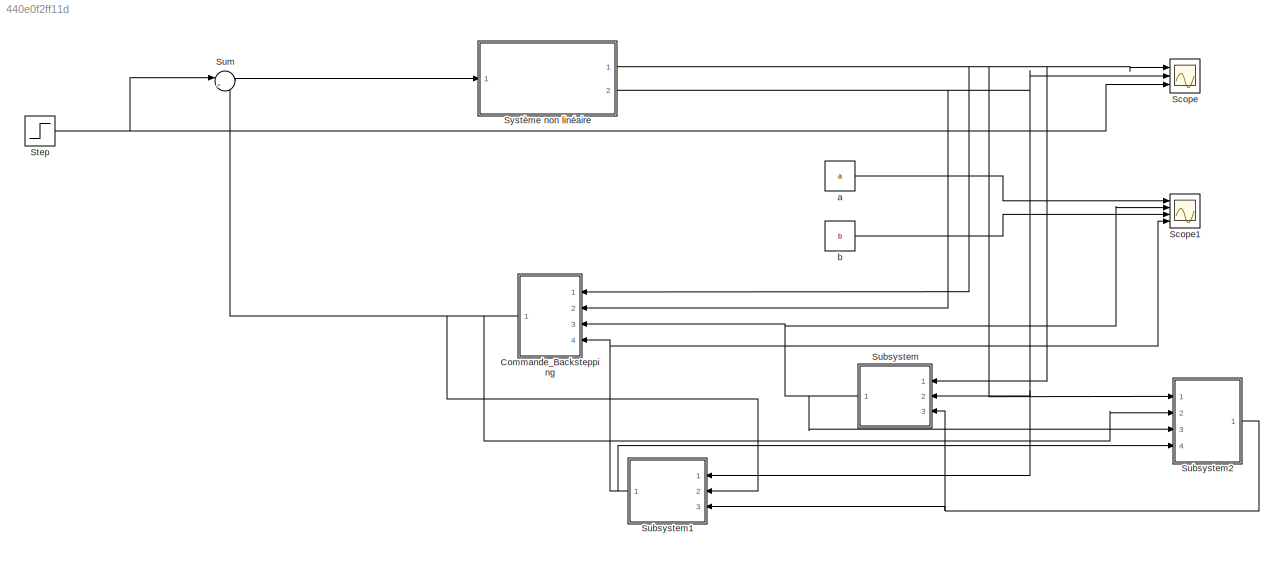
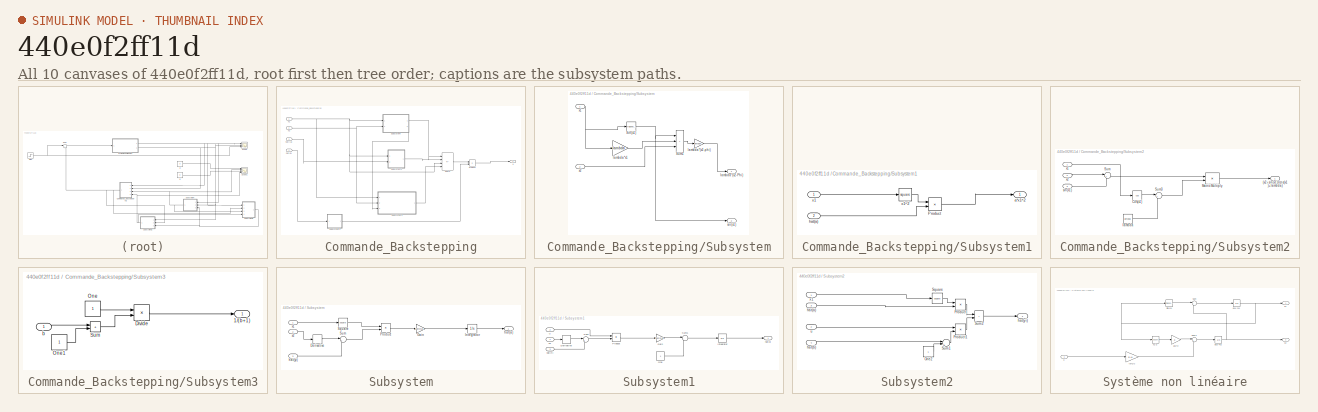
[diagram: thumbnail index - all 10 canvases of the model, root first then tree order]
MODEL slx_440e0f2ff11d
KIND model
CONFIG AbsTol = auto
CONFIG EnableMultiTasking = off
CONFIG FixedStep = auto
CONFIG MaxStep = auto
CONFIG MinStep = auto
CONFIG RelTol = 1e-3
CONFIG SampleTimeConstraint = Unconstrained
CONFIG Solver = VariableStepAuto
CONFIG SolverName = VariableStepAuto
CONFIG StartTime = 0.0
CONFIG StopTime = 10
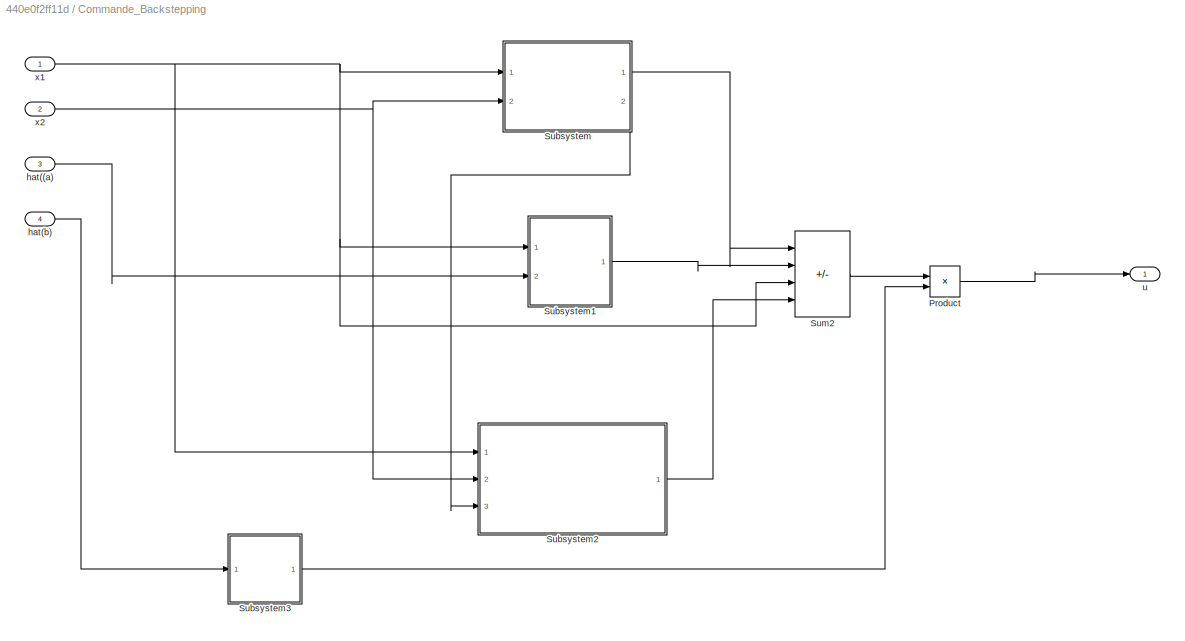
BLOCK [SubSystem] Commande_Backstepping
  NameLocation = top
  Ports = [4, 1]
  RequestExecContextInheritance = off
BLOCK [Product] Commande_Backstepping/Product
  Ports = [2, 1]
BLOCK [SubSystem] Commande_Backstepping/Subsystem
  Ports = [2, 2]
  RequestExecContextInheritance = off
BLOCK [Trigonometry] Commande_Backstepping/Subsystem/Sin(x1)
  Ports = [1, 1]
BLOCK [Sum] Commande_Backstepping/Subsystem/Sum1
  IconShape = rectangular
  Inputs = |+++
  Ports = [3, 1]
BLOCK [Outport] Commande_Backstepping/Subsystem/lambda*(x2-Phi)
BLOCK [Gain] Commande_Backstepping/Subsystem/lambda*(x2-phi)
  Gain = lambda
BLOCK [Gain] Commande_Backstepping/Subsystem/lambda*x1
  Gain = lambda
BLOCK [Outport] Commande_Backstepping/Subsystem/sin(x1)
  Port = 2
BLOCK [Inport] Commande_Backstepping/Subsystem/x1
BLOCK [Inport] Commande_Backstepping/Subsystem/x2
  Port = 2
BLOCK [SubSystem] Commande_Backstepping/Subsystem1
  Ports = [2, 1]
  RequestExecContextInheritance = off
BLOCK [Product] Commande_Backstepping/Subsystem1/Product
  Ports = [2, 1]
BLOCK [Outport] Commande_Backstepping/Subsystem1/a*x1^2
BLOCK [Inport] Commande_Backstepping/Subsystem1/hat(a)
  Port = 2
BLOCK [Inport] Commande_Backstepping/Subsystem1/x1 
BLOCK [Math] Commande_Backstepping/Subsystem1/x1^2
  Operator = square
  Ports = [1, 1]
BLOCK [SubSystem] Commande_Backstepping/Subsystem2
  Ports = [3, 1]
  RequestExecContextInheritance = off
BLOCK [Outport] Commande_Backstepping/Subsystem2/(x2+sin(x1))(cos(x1)+lambda)
BLOCK [Trigonometry] Commande_Backstepping/Subsystem2/Cos(x1)
  Operator = cos
  Ports = [1, 1]
BLOCK [Product] Commande_Backstepping/Subsystem2/Matrix Multiply
  Ports = [2, 1]
BLOCK [Sum] Commande_Backstepping/Subsystem2/Sum
  Inputs = |++
  Ports = [2, 1]
BLOCK [Sum] Commande_Backstepping/Subsystem2/Sum3
  Inputs = |++
  Ports = [2, 1]
BLOCK [Constant] Commande_Backstepping/Subsystem2/lambda
  OutDataTypeStr = Inherit: Inherit via back propagation
  Value = lambda
BLOCK [Inport] Commande_Backstepping/Subsystem2/sin(x1)
  Port = 3
BLOCK [Inport] Commande_Backstepping/Subsystem2/x1 
BLOCK [Inport] Commande_Backstepping/Subsystem2/x2
  Port = 2
BLOCK [SubSystem] Commande_Backstepping/Subsystem3
  Ports = [1, 1]
  RequestExecContextInheritance = off
BLOCK [Outport] Commande_Backstepping/Subsystem3/1//(b+1)
BLOCK [Product] Commande_Backstepping/Subsystem3/Divide
  Inputs = */
  Ports = [2, 1]
BLOCK [Constant] Commande_Backstepping/Subsystem3/One
  OutDataTypeStr = Inherit: Inherit via back propagation
BLOCK [Constant] Commande_Backstepping/Subsystem3/One1
  OutDataTypeStr = Inherit: Inherit via back propagation
BLOCK [Sum] Commande_Backstepping/Subsystem3/Sum
  IconShape = rectangular
  Inputs = |++
  Ports = [2, 1]
BLOCK [Inport] Commande_Backstepping/Subsystem3/b
BLOCK [Sum] Commande_Backstepping/Sum2
  IconShape = rectangular
  Inputs = |----
  Ports = [4, 1]
BLOCK [Inport] Commande_Backstepping/hat((a)
  Port = 3
BLOCK [Inport] Commande_Backstepping/hat(b)
  Port = 4
BLOCK [Outport] Commande_Backstepping/u
BLOCK [Inport] Commande_Backstepping/x1
BLOCK [Inport] Commande_Backstepping/x2
  Port = 2
BLOCK [Scope] Scope
  Floating = off
  NumInputPorts = 3
  Ports = [3]
  ScopeSpecificationString = Simulink.scopes.TimeScopeBlockCfg('CurrentConfiguration', extmgr.ConfigurationSet(extmgr.Configuration('Core','General UI',true),extmgr.Configuration('Core','Source UI',true),extmgr.Configuration('Sources','WiredSimulink',true),extmgr.Configuration('Visuals','Time Domain',true,'SerializedDisplays',{struct('MinYLimReal','-0.82093','MaxYLimReal','1.20233','YLabelReal','','MinYLimMag','0.00000','MaxY...<+1372ch>
BLOCK [Scope] Scope1
  Floating = off
  NumInputPorts = 4
  Ports = [4]
  ScopeSpecificationString = Simulink.scopes.TimeScopeBlockCfg('CurrentConfiguration', extmgr.ConfigurationSet(extmgr.Configuration('Core','General UI',true),extmgr.Configuration('Core','Source UI',true),extmgr.Configuration('Sources','WiredSimulink',true,'DataLoggingVariableName','ScopeData1'),extmgr.Configuration('Visuals','Time Domain',true,'SerializedDisplays',{struct('MinYLimReal','-0.40625','MaxYLimReal','1.15625','YLab...<+1387ch>
BLOCK [Step] Step
  SampleTime = 0
  Time = 0
BLOCK [SubSystem] Subsystem
  NameLocation = top
  Ports = [3, 1]
  RequestExecContextInheritance = off
BLOCK [Derivative] Subsystem/Derivative
BLOCK [Gain] Subsystem/Gain
  Gain = gamma1
BLOCK [Integrator] Subsystem/Integrator
  LimitOutput = on
  LowerSaturationLimit = -1
  Ports = [1, 1]
  UpperSaturationLimit = 1
BLOCK [Product] Subsystem/Product
  Ports = [2, 1]
BLOCK [Math] Subsystem/Square
  Operator = square
  Ports = [1, 1]
BLOCK [Sum] Subsystem/Sum
  Inputs = |+-
  Ports = [2, 1]
BLOCK [Outport] Subsystem/hat(a)
  NameLocation = top
BLOCK [Inport] Subsystem/hat(yi)
  Port = 3
BLOCK [Inport] Subsystem/x1
BLOCK [Inport] Subsystem/x2
  Port = 2
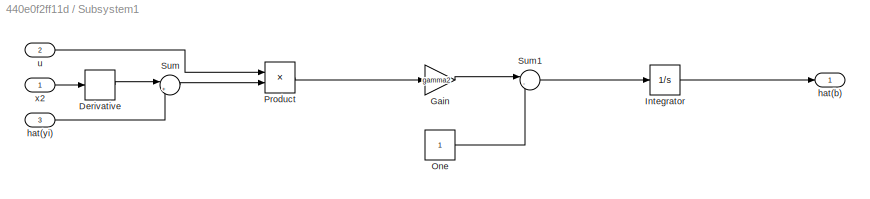
BLOCK [SubSystem] Subsystem1
  NameLocation = top
  Ports = [3, 1]
  RequestExecContextInheritance = off
BLOCK [Derivative] Subsystem1/Derivative
BLOCK [Gain] Subsystem1/Gain
  Gain = gamma2
BLOCK [Integrator] Subsystem1/Integrator
  InitialCondition = -0.25
  LimitOutput = on
  LowerSaturationLimit = -0.25
  Ports = [1, 1]
  UpperSaturationLimit = 0.25
BLOCK [Constant] Subsystem1/One
  OutDataTypeStr = Inherit: Inherit via back propagation
BLOCK [Product] Subsystem1/Product
  Ports = [2, 1]
BLOCK [Sum] Subsystem1/Sum
  Inputs = |+-
  Ports = [2, 1]
BLOCK [Sum] Subsystem1/Sum1
  Inputs = |-+
  Ports = [2, 1]
BLOCK [Outport] Subsystem1/hat(b)
  NameLocation = top
BLOCK [Inport] Subsystem1/hat(yi)
  Port = 3
BLOCK [Inport] Subsystem1/u
  Port = 2
BLOCK [Inport] Subsystem1/x2
BLOCK [SubSystem] Subsystem2
  Ports = [4, 1]
  RequestExecContextInheritance = off
BLOCK [Constant] Subsystem2/One2
  OutDataTypeStr = Inherit: Inherit via back propagation
BLOCK [Product] Subsystem2/Product
  Ports = [2, 1]
BLOCK [Product] Subsystem2/Product1
  Ports = [2, 1]
BLOCK [Math] Subsystem2/Square
  Operator = square
  Ports = [1, 1]
BLOCK [Sum] Subsystem2/Sum1
  Inputs = |++
  Ports = [2, 1]
BLOCK [Sum] Subsystem2/Sum2
  IconShape = rectangular
  Inputs = |++
  Ports = [2, 1]
BLOCK [Inport] Subsystem2/hat(a)
  Port = 3
BLOCK [Inport] Subsystem2/hat(b)
  Port = 4
BLOCK [Outport] Subsystem2/hat(yi)
  NameLocation = top
BLOCK [Inport] Subsystem2/u
  Port = 2
BLOCK [Inport] Subsystem2/x1
BLOCK [Sum] Sum
  Inputs = |++
  Ports = [2, 1]
BLOCK [SubSystem] Système non linéaire
  Ports = [1, 2]
  RequestExecContextInheritance = off
BLOCK [Gain] Système non linéaire/(b+1)u
  Gain = b +1
BLOCK [Trigonometry] Système non linéaire/Sin(x1)
  Ports = [1, 1]
BLOCK [Sum] Système non linéaire/Sum
  Inputs = |++
  Ports = [2, 1]
BLOCK [Sum] Système non linéaire/Sum1
  Inputs = |++
  Ports = [2, 1]
BLOCK [Gain] Système non linéaire/ax1^2
  Gain = a
BLOCK [Integrator] Système non linéaire/dx1->x1
  Ports = [1, 1]
BLOCK [Integrator] Système non linéaire/dx2->x2
  Ports = [1, 1]
BLOCK [Inport] Système non linéaire/u
BLOCK [Outport] Système non linéaire/x1
BLOCK [Math] Système non linéaire/x1^2
  Operator = square
  Ports = [1, 1]
BLOCK [Outport] Système non linéaire/x2
  Port = 2
BLOCK [Constant] a
  OutDataTypeStr = Inherit: Inherit via back propagation
  Value = a
BLOCK [Constant] b
  OutDataTypeStr = Inherit: Inherit via back propagation
  Value = b
LINE Commande_Backstepping/Product:1 -> Commande_Backstepping/u:1
NET Commande_Backstepping/Subsystem/Sin(x1):1 -> Commande_Backstepping/Subsystem/Sum1:1, Commande_Backstepping/Subsystem/sin(x1):1
LINE Commande_Backstepping/Subsystem/Sum1:1 -> Commande_Backstepping/Subsystem/lambda*(x2-phi):1
LINE Commande_Backstepping/Subsystem/lambda*(x2-phi):1 -> Commande_Backstepping/Subsystem/lambda*(x2-Phi):1
LINE Commande_Backstepping/Subsystem/lambda*x1:1 -> Commande_Backstepping/Subsystem/Sum1:2
NET Commande_Backstepping/Subsystem/x1:1 -> Commande_Backstepping/Subsystem/Sin(x1):1, Commande_Backstepping/Subsystem/lambda*x1:1
LINE Commande_Backstepping/Subsystem/x2:1 -> Commande_Backstepping/Subsystem/Sum1:3
LINE Commande_Backstepping/Subsystem1/Product:1 -> Commande_Backstepping/Subsystem1/a*x1^2:1
LINE Commande_Backstepping/Subsystem1/hat(a):1 -> Commande_Backstepping/Subsystem1/Product:2
LINE Commande_Backstepping/Subsystem1/x1 :1 -> Commande_Backstepping/Subsystem1/x1^2:1
LINE Commande_Backstepping/Subsystem1/x1^2:1 -> Commande_Backstepping/Subsystem1/Product:1
LINE Commande_Backstepping/Subsystem1:1 -> Commande_Backstepping/Sum2:2
LINE Commande_Backstepping/Subsystem2/Cos(x1):1 -> Commande_Backstepping/Subsystem2/Sum3:1
LINE Commande_Backstepping/Subsystem2/Matrix Multiply:1 -> Commande_Backstepping/Subsystem2/(x2+sin(x1))(cos(x1)+lambda):1
LINE Commande_Backstepping/Subsystem2/Sum3:1 -> Commande_Backstepping/Subsystem2/Matrix Multiply:2
LINE Commande_Backstepping/Subsystem2/Sum:1 -> Commande_Backstepping/Subsystem2/Matrix Multiply:1
LINE Commande_Backstepping/Subsystem2/lambda:1 -> Commande_Backstepping/Subsystem2/Sum3:2
LINE Commande_Backstepping/Subsystem2/sin(x1):1 -> Commande_Backstepping/Subsystem2/Sum:2
LINE Commande_Backstepping/Subsystem2/x1 :1 -> Commande_Backstepping/Subsystem2/Cos(x1):1
LINE Commande_Backstepping/Subsystem2/x2:1 -> Commande_Backstepping/Subsystem2/Sum:1
LINE Commande_Backstepping/Subsystem2:1 -> Commande_Backstepping/Sum2:4
LINE Commande_Backstepping/Subsystem3/Divide:1 -> Commande_Backstepping/Subsystem3/1//(b+1):1
LINE Commande_Backstepping/Subsystem3/One1:1 -> Commande_Backstepping/Subsystem3/Sum:2
LINE Commande_Backstepping/Subsystem3/One:1 -> Commande_Backstepping/Subsystem3/Divide:1
LINE Commande_Backstepping/Subsystem3/Sum:1 -> Commande_Backstepping/Subsystem3/Divide:2
LINE Commande_Backstepping/Subsystem3/b:1 -> Commande_Backstepping/Subsystem3/Sum:1
LINE Commande_Backstepping/Subsystem3:1 -> Commande_Backstepping/Product:2
LINE Commande_Backstepping/Subsystem:1 -> Commande_Backstepping/Sum2:1
LINE Commande_Backstepping/Subsystem:2 -> Commande_Backstepping/Subsystem2:3
LINE Commande_Backstepping/Sum2:1 -> Commande_Backstepping/Product:1
LINE Commande_Backstepping/hat((a):1 -> Commande_Backstepping/Subsystem1:2
LINE Commande_Backstepping/hat(b):1 -> Commande_Backstepping/Subsystem3:1
NET Commande_Backstepping/x1:1 -> Commande_Backstepping/Subsystem1:1, Commande_Backstepping/Subsystem2:1, Commande_Backstepping/Subsystem:1, Commande_Backstepping/Sum2:3
NET Commande_Backstepping/x2:1 -> Commande_Backstepping/Subsystem2:2, Commande_Backstepping/Subsystem:2
NET Commande_Backstepping:1 -> Subsystem1:2, Subsystem2:2, Sum:2
NET Step:1 -> Scope:3, Sum:1
LINE Subsystem/Derivative:1 -> Subsystem/Sum:1
LINE Subsystem/Gain:1 -> Subsystem/Integrator:1
LINE Subsystem/Integrator:1 -> Subsystem/hat(a):1
LINE Subsystem/Product:1 -> Subsystem/Gain:1
LINE Subsystem/Square:1 -> Subsystem/Product:1
LINE Subsystem/Sum:1 -> Subsystem/Product:2
LINE Subsystem/hat(yi):1 -> Subsystem/Sum:2
LINE Subsystem/x1:1 -> Subsystem/Square:1
LINE Subsystem/x2:1 -> Subsystem/Derivative:1
LINE Subsystem1/Derivative:1 -> Subsystem1/Sum:1
LINE Subsystem1/Gain:1 -> Subsystem1/Sum1:1
LINE Subsystem1/Integrator:1 -> Subsystem1/hat(b):1
LINE Subsystem1/One:1 -> Subsystem1/Sum1:2
LINE Subsystem1/Product:1 -> Subsystem1/Gain:1
LINE Subsystem1/Sum1:1 -> Subsystem1/Integrator:1
LINE Subsystem1/Sum:1 -> Subsystem1/Product:2
LINE Subsystem1/hat(yi):1 -> Subsystem1/Sum:2
LINE Subsystem1/u:1 -> Subsystem1/Product:1
LINE Subsystem1/x2:1 -> Subsystem1/Derivative:1
NET Subsystem1:1 -> Commande_Backstepping:4, Scope1:4, Subsystem2:4
LINE Subsystem2/One2:1 -> Subsystem2/Sum1:2
LINE Subsystem2/Product1:1 -> Subsystem2/Sum2:2
LINE Subsystem2/Product:1 -> Subsystem2/Sum2:1
LINE Subsystem2/Square:1 -> Subsystem2/Product:1
LINE Subsystem2/Sum1:1 -> Subsystem2/Product1:2
LINE Subsystem2/Sum2:1 -> Subsystem2/hat(yi):1
LINE Subsystem2/hat(a):1 -> Subsystem2/Product:2
LINE Subsystem2/hat(b):1 -> Subsystem2/Sum1:1
LINE Subsystem2/u:1 -> Subsystem2/Product1:1
LINE Subsystem2/x1:1 -> Subsystem2/Square:1
NET Subsystem2:1 -> Subsystem1:3, Subsystem:3
NET Subsystem:1 -> Commande_Backstepping:3, Scope1:2, Subsystem2:3
LINE Sum:1 -> Système non linéaire:1
LINE Système non linéaire/(b+1)u:1 -> Système non linéaire/Sum1:2
LINE Système non linéaire/Sin(x1):1 -> Système non linéaire/Sum:1
LINE Système non linéaire/Sum1:1 -> Système non linéaire/dx2->x2:1
LINE Système non linéaire/Sum:1 -> Système non linéaire/dx1->x1:1
LINE Système non linéaire/ax1^2:1 -> Système non linéaire/Sum1:1
NET Système non linéaire/dx1->x1:1 -> Système non linéaire/Sin(x1):1, Système non linéaire/x1:1, Système non linéaire/x1^2:1
NET Système non linéaire/dx2->x2:1 -> Système non linéaire/Sum:2, Système non linéaire/x2:1
LINE Système non linéaire/u:1 -> Système non linéaire/(b+1)u:1
LINE Système non linéaire/x1^2:1 -> Système non linéaire/ax1^2:1
NET Système non linéaire:1 -> Commande_Backstepping:1, Scope:1, Subsystem2:1, Subsystem:1
NET Système non linéaire:2 -> Commande_Backstepping:2, Scope:2, Subsystem1:1, Subsystem:2
LINE a:1 -> Scope1:1
LINE b:1 -> Scope1:3
note: NET lines group one-source signal fan-out (src -> all destinations, sorted); 1:1 wires keep LINE
